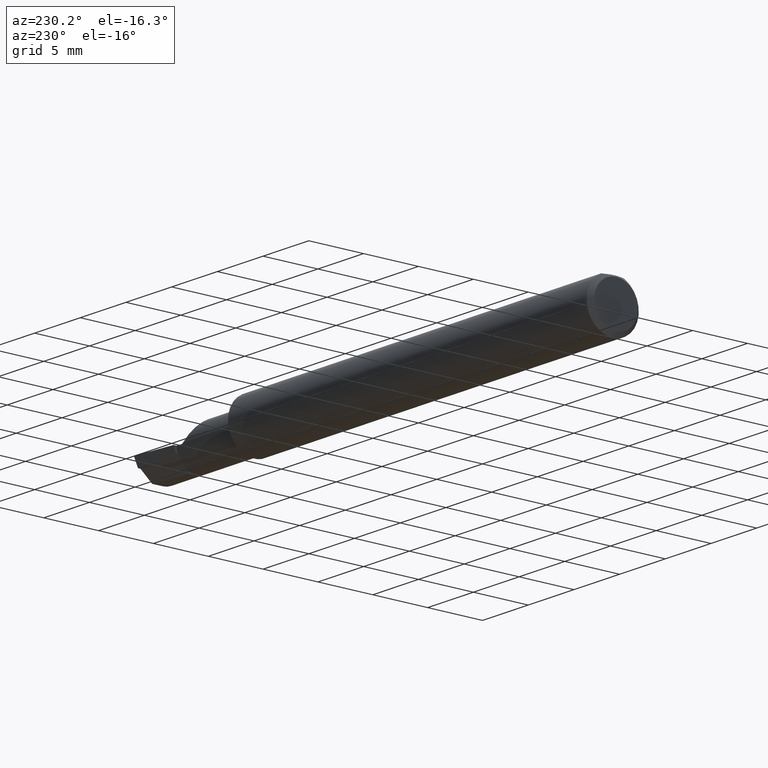
[diagram: clean part render]
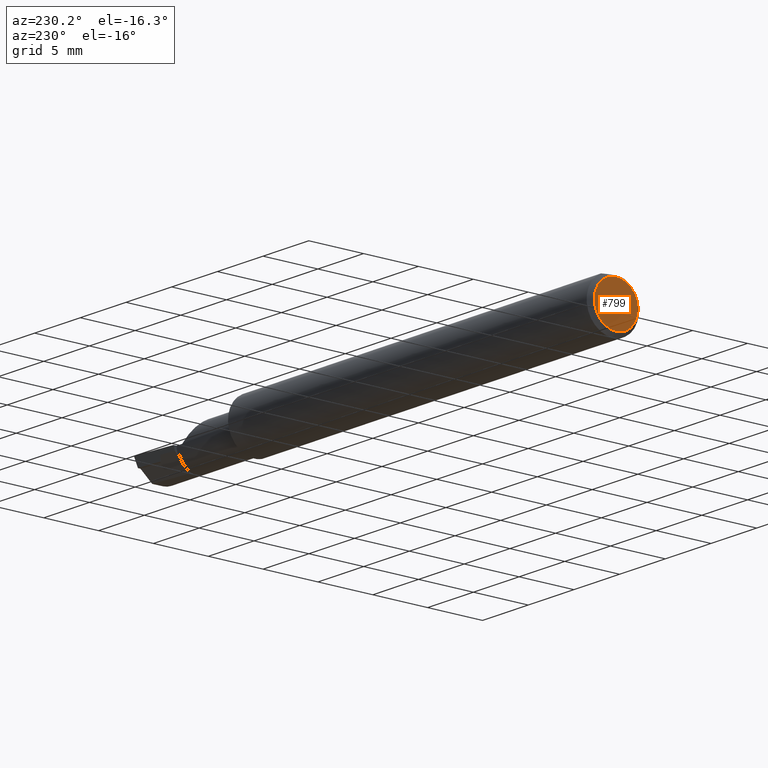
[diagram: same view with one face highlighted and labeled with its STEP entity id]
A machine part, auxiliary view. The second image highlights one B-rep face of the part: STEP entity #799.
In plain terms, the highlighted planar face has unit normal (1, 0, 0).
Its self-contained STEP definition (entity closure, byte-faithful):
#50 = CARTESIAN_POINT ( 'NONE',  ( 0.000000000000000000, 0.000000000000000000, 0.000000000000000000 ) ) ;
#63 = FACE_OUTER_BOUND ( 'NONE', #1006, .T. ) ;
#118 = DIRECTION ( 'NONE',  ( -1.000000000000000000, -0.000000000000000000, -0.000000000000000000 ) ) ;
#177 = VERTEX_POINT ( 'NONE', #1065 ) ;
#250 = PLANE ( 'NONE',  #572 ) ;
#323 = CIRCLE ( 'NONE', #598, 1.996440000000009096 ) ;
#438 = EDGE_CURVE ( 'NONE', #1215, #177, #323, .T. ) ;
#452 = DIRECTION ( 'NONE',  ( 0.000000000000000000, 0.000000000000000000, -1.000000000000000000 ) ) ;
#530 = CARTESIAN_POINT ( 'NONE',  ( 0.000000000000000000, 0.000000000000000000, 0.000000000000000000 ) ) ;
#572 = AXIS2_PLACEMENT_3D ( 'NONE', #50, #837, #633 ) ;
#598 = AXIS2_PLACEMENT_3D ( 'NONE', #835, #1123, #452 ) ;
#633 = DIRECTION ( 'NONE',  ( 0.000000000000000000, 0.000000000000000000, -1.000000000000000000 ) ) ;
#663 = EDGE_CURVE ( 'NONE', #177, #1215, #792, .T. ) ;
#792 = CIRCLE ( 'NONE', #968, 1.996440000000009096 ) ;
#799 = ADVANCED_FACE ( 'NONE', ( #63 ), #250, .F. ) ;
#809 = ORIENTED_EDGE ( 'NONE', *, *, #663, .T. ) ;
#835 = CARTESIAN_POINT ( 'NONE',  ( 0.000000000000000000, 0.000000000000000000, 0.000000000000000000 ) ) ;
#837 = DIRECTION ( 'NONE',  ( 1.000000000000000000, 0.000000000000000000, 0.000000000000000000 ) ) ;
#914 = DIRECTION ( 'NONE',  ( 0.000000000000000000, 0.000000000000000000, -1.000000000000000000 ) ) ;
#968 = AXIS2_PLACEMENT_3D ( 'NONE', #530, #118, #914 ) ;
#1006 = EDGE_LOOP ( 'NONE', ( #809, #1192 ) ) ;
#1065 = CARTESIAN_POINT ( 'NONE',  ( 0.000000000000000000, 0.000000000000000000, -1.996440000000009096 ) ) ;
#1123 = DIRECTION ( 'NONE',  ( -1.000000000000000000, -0.000000000000000000, -0.000000000000000000 ) ) ;
#1192 = ORIENTED_EDGE ( 'NONE', *, *, #438, .T. ) ;
#1215 = VERTEX_POINT ( 'NONE', #1238 ) ;
#1238 = CARTESIAN_POINT ( 'NONE',  ( 0.000000000000000000, 2.678229070927318227E-16, 1.996440000000009096 ) ) ;